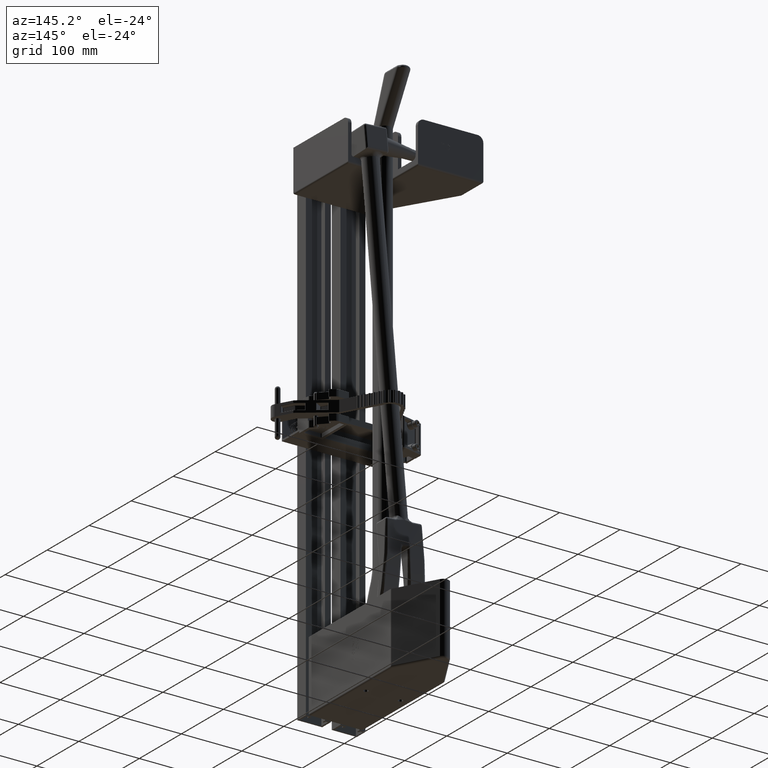
[diagram: clean part render]
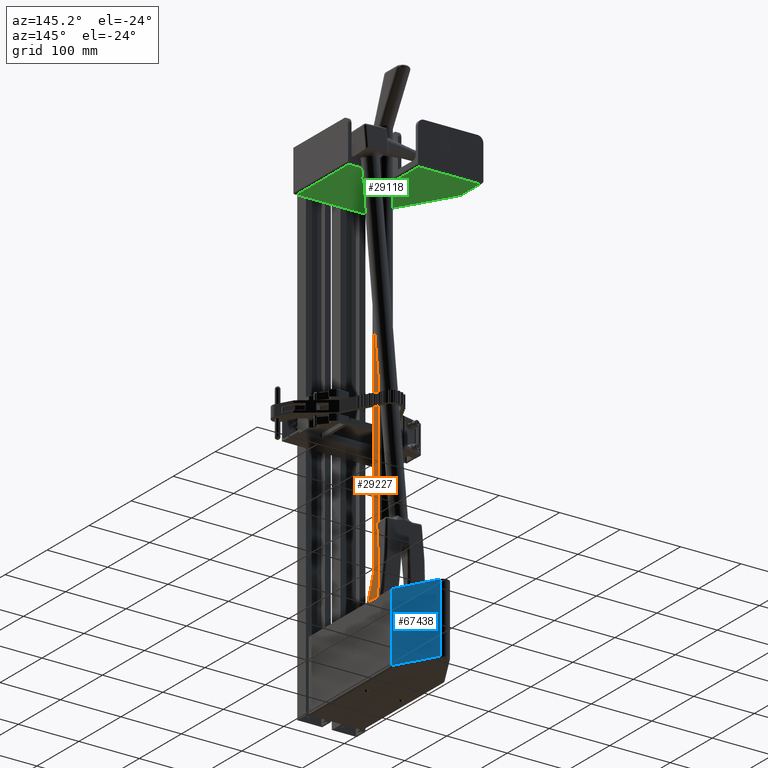
[diagram: same view with three faces highlighted in distinct colors, each labeled with its STEP entity id]
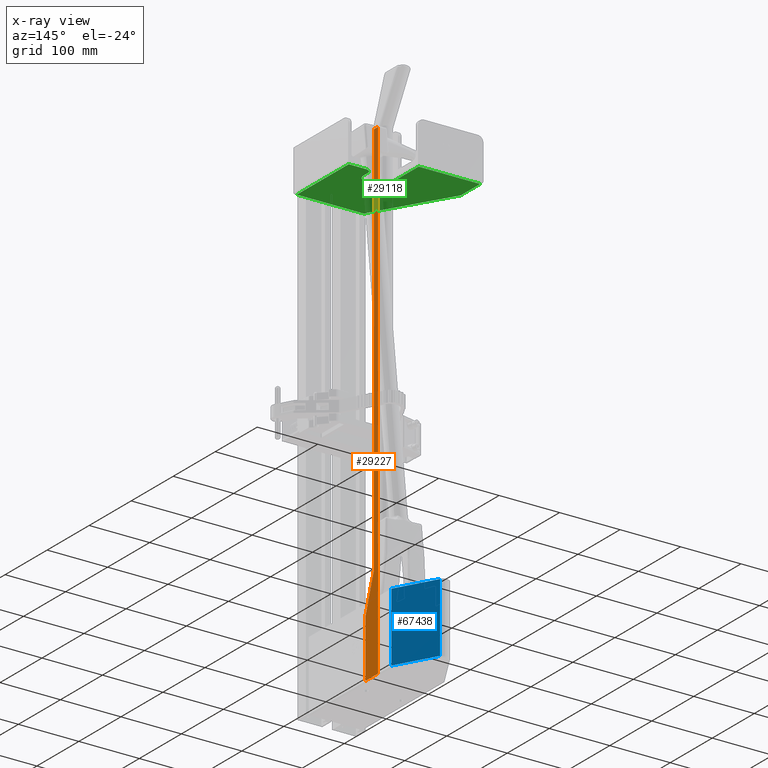
[diagram: x-ray of the same camera — body ghosted, the three highlighted faces saturated]
A machine part, auxiliary view with three faces highlighted in distinct colors.
The next image is the same camera in x-ray (body ghosted, the three faces saturated) — at least one of them is partly hidden behind the body in this view.
Their STEP definitions:

[orange] entity #29227 — the highlighted planar face has unit normal (1, 0, 0).
#21356 = B_SPLINE_CURVE_WITH_KNOTS ( 'NONE', 3,
 ( #52438, #52442, #52443, #52444, #52445, #52446, #52447 ),
 .UNSPECIFIED., .F., .F.,
 ( 4, 1, 1, 1, 4 ),
 ( 0.0000000000000000000, 0.2499999999427076900, 0.4999999998854153800, 0.7499999998281230400, 1.000000000000000000 ),
 .UNSPECIFIED. ) ;
#23010 = ORIENTED_EDGE ( 'NONE', *, *, #28834, .F. ) ;
#23011 = ORIENTED_EDGE ( 'NONE', *, *, #28833, .F. ) ;
#23012 = ORIENTED_EDGE ( 'NONE', *, *, #28828, .F. ) ;
#23013 = ORIENTED_EDGE ( 'NONE', *, *, #28835, .F. ) ;
#23014 = ORIENTED_EDGE ( 'NONE', *, *, #28831, .F. ) ;
#23015 = ORIENTED_EDGE ( 'NONE', *, *, #28832, .T. ) ;
#23016 = ORIENTED_EDGE ( 'NONE', *, *, #28836, .F. ) ;
#23017 = ORIENTED_EDGE ( 'NONE', *, *, #28812, .T. ) ;
#24386 = EDGE_LOOP ( 'NONE', ( #23010, #23011, #23012, #23013, #23014, #23015, #23016, #23017 ) ) ;
#25218 = VERTEX_POINT ( 'NONE', #42758 ) ;
#25221 = VERTEX_POINT ( 'NONE', #42764 ) ;
#25224 = VERTEX_POINT ( 'NONE', #42770 ) ;
#25225 = VERTEX_POINT ( 'NONE', #42772 ) ;
#25226 = VERTEX_POINT ( 'NONE', #42774 ) ;
#25227 = VERTEX_POINT ( 'NONE', #42776 ) ;
#25228 = VERTEX_POINT ( 'NONE', #42778 ) ;
#25229 = VERTEX_POINT ( 'NONE', #42780 ) ;
#28812 = EDGE_CURVE ( 'NONE', #25218, #25221, #50658, .T. ) ;
#28828 = EDGE_CURVE ( 'NONE', #25226, #25225, #50681, .T. ) ;
#28831 = EDGE_CURVE ( 'NONE', #25228, #25227, #21356, .T. ) ;
#28832 = EDGE_CURVE ( 'NONE', #25228, #25229, #50689, .T. ) ;
#28833 = EDGE_CURVE ( 'NONE', #25225, #25224, #50692, .T. ) ;
#28834 = EDGE_CURVE ( 'NONE', #25224, #25221, #50685, .T. ) ;
#28835 = EDGE_CURVE ( 'NONE', #25227, #25226, #50696, .T. ) ;
#28836 = EDGE_CURVE ( 'NONE', #25218, #25229, #50649, .T. ) ;
#29227 = ADVANCED_FACE ( 'NONE', ( #51251 ), #63501, .T. ) ;
#37614 = AXIS2_PLACEMENT_3D ( 'NONE', #63497, #63504, #63505 ) ;
#42758 = CARTESIAN_POINT ( 'NONE',  ( -2.887444690265486900, 2.054374613805310700, 3.750000000000000000 ) ) ;
#42764 = CARTESIAN_POINT ( 'NONE',  ( -2.887444690265486900, 2.054374613805310300, 0.0000000000000000000 ) ) ;
#42770 = CARTESIAN_POINT ( 'NONE',  ( -2.887444690265486900, 0.8668746138053105000, 0.0000000000000000000 ) ) ;
#42772 = CARTESIAN_POINT ( 'NONE',  ( -2.887444690265486900, 0.8668746138053105000, 3.750000000000000000 ) ) ;
#42774 = CARTESIAN_POINT ( 'NONE',  ( -2.887444690265486900, 0.8668746138053105000, 6.199999999999994000 ) ) ;
#42776 = CARTESIAN_POINT ( 'NONE',  ( -2.887444690265486900, 0.8668746138053105000, 31.99999999999999600 ) ) ;
#42778 = CARTESIAN_POINT ( 'NONE',  ( -2.887444690265486900, 1.241874613805310500, 31.99999999999999600 ) ) ;
#42780 = CARTESIAN_POINT ( 'NONE',  ( -2.887444690265486900, 1.241874613805310500, 6.199999999999994000 ) ) ;
#50649 = LINE ( 'NONE', #52452, #50698 ) ;
#50658 = LINE ( 'NONE', #52384, #50659 ) ;
#50659 = VECTOR ( 'NONE', #52385, 39.37007874015748100 ) ;
#50681 = LINE ( 'NONE', #52434, #50684 ) ;
#50684 = VECTOR ( 'NONE', #52435, 39.37007874015748100 ) ;
#50685 = LINE ( 'NONE', #52441, #50694 ) ;
#50688 = VECTOR ( 'NONE', #52449, 39.37007874015748100 ) ;
#50689 = LINE ( 'NONE', #52448, #50688 ) ;
#50692 = LINE ( 'NONE', #52450, #50693 ) ;
#50693 = VECTOR ( 'NONE', #52451, 39.37007874015748100 ) ;
#50694 = VECTOR ( 'NONE', #52453, 39.37007874015748100 ) ;
#50696 = LINE ( 'NONE', #52454, #50697 ) ;
#50697 = VECTOR ( 'NONE', #52455, 39.37007874015748100 ) ;
#50698 = VECTOR ( 'NONE', #52457, 39.37007874015748900 ) ;
#51251 = FACE_OUTER_BOUND ( 'NONE', #24386, .T. ) ;
#52384 = CARTESIAN_POINT ( 'NONE',  ( -2.887444690265486900, 2.054374613805310300, 3.750000000000000000 ) ) ;
#52385 = DIRECTION ( 'NONE',  ( 0.0000000000000000000, 0.0000000000000000000, -1.000000000000000000 ) ) ;
#52434 = CARTESIAN_POINT ( 'NONE',  ( -2.887444690265486900, 0.8668746138053105000, 4.974999999999997000 ) ) ;
#52435 = DIRECTION ( 'NONE',  ( -0.0000000000000000000, -0.0000000000000000000, -1.000000000000000000 ) ) ;
#52438 = CARTESIAN_POINT ( 'NONE',  ( -2.887444690265486900, 1.241874613805310500, 31.99999999999999600 ) ) ;
#52441 = CARTESIAN_POINT ( 'NONE',  ( -2.887444690265486900, 2.054374613805310300, 0.0000000000000000000 ) ) ;
#52442 = CARTESIAN_POINT ( 'NONE',  ( -2.887444690265486900, 1.195377397594960400, 31.99999999999999600 ) ) ;
#52443 = CARTESIAN_POINT ( 'NONE',  ( -2.887444690265488200, 1.136205090966162500, 31.99999999999992900 ) ) ;
#52444 = CARTESIAN_POINT ( 'NONE',  ( -2.887444690265484700, 1.054374613805310700, 32.00000000000006400 ) ) ;
#52445 = CARTESIAN_POINT ( 'NONE',  ( -2.887444690265487300, 0.9725441366444582700, 31.99999999999994700 ) ) ;
#52446 = CARTESIAN_POINT ( 'NONE',  ( -2.887444690265486900, 0.9133718300156606900, 31.99999999999999600 ) ) ;
#52447 = CARTESIAN_POINT ( 'NONE',  ( -2.887444690265486900, 0.8668746138053105000, 31.99999999999999600 ) ) ;
#52448 = CARTESIAN_POINT ( 'NONE',  ( -2.887444690265486900, 1.241874613805310500, 31.99999999999999600 ) ) ;
#52449 = DIRECTION ( 'NONE',  ( -0.0000000000000000000, -0.0000000000000000000, -1.000000000000000000 ) ) ;
#52450 = CARTESIAN_POINT ( 'NONE',  ( -2.887444690265486900, 0.8668746138053105000, 3.750000000000000000 ) ) ;
#52451 = DIRECTION ( 'NONE',  ( 0.0000000000000000000, 0.0000000000000000000, -1.000000000000000000 ) ) ;
#52452 = CARTESIAN_POINT ( 'NONE',  ( -2.887444690265486900, 1.648124613805310500, 4.974999999999997000 ) ) ;
#52453 = DIRECTION ( 'NONE',  ( -0.0000000000000000000, 1.000000000000000000, -0.0000000000000000000 ) ) ;
#52454 = CARTESIAN_POINT ( 'NONE',  ( -2.887444690265486900, 0.8668746138053105000, 31.99999999999999600 ) ) ;
#52455 = DIRECTION ( 'NONE',  ( -0.0000000000000000000, -0.0000000000000000000, -1.000000000000000000 ) ) ;
#52457 = DIRECTION ( 'NONE',  ( 0.0000000000000000000, -0.3147745894168386100, 0.9491664542415416700 ) ) ;
#63497 = CARTESIAN_POINT ( 'NONE',  ( -2.887444690265486900, 2.054374613805310300, 3.750000000000000000 ) ) ;
#63501 = PLANE ( 'NONE',  #37614 ) ;
#63504 = DIRECTION ( 'NONE',  ( -1.000000000000000000, 0.0000000000000000000, -0.0000000000000000000 ) ) ;
#63505 = DIRECTION ( 'NONE',  ( -0.0000000000000000000, 0.0000000000000000000, 1.000000000000000000 ) ) ;

[blue] entity #67438 — the highlighted planar face has unit normal (-0.8739, -0.4861, 0).
#1882 = CARTESIAN_POINT ( 'NONE',  ( 1.750000000000000400, 7.687500000000000000, 4.625000000000000000 ) ) ;
#1907 = DIRECTION ( 'NONE',  ( -0.4860531373431767900, 0.8739292578228828900, 0.0000000000000000000 ) ) ;
#1997 = CARTESIAN_POINT ( 'NONE',  ( 1.750000000000000400, 7.687500000000000000, 0.1249999999999999000 ) ) ;
#1999 = DIRECTION ( 'NONE',  ( -0.4860531373431767900, 0.8739292578228828900, 0.0000000000000000000 ) ) ;
#2001 = CARTESIAN_POINT ( 'NONE',  ( 1.734241157227860700, 7.715834584657314600, 4.625000000000000000 ) ) ;
#2010 = DIRECTION ( 'NONE',  ( 0.0000000000000000000, 0.0000000000000000000, -1.000000000000000000 ) ) ;
#2017 = CARTESIAN_POINT ( 'NONE',  ( 0.3277234716835822300, 10.24476992650369100, 4.625000000000000000 ) ) ;
#2038 = DIRECTION ( 'NONE',  ( -0.0000000000000000000, -0.0000000000000000000, -1.000000000000000000 ) ) ;
#10801 = AXIS2_PLACEMENT_3D ( 'NONE', #41956, #41974, #41976 ) ;
#18665 = FACE_OUTER_BOUND ( 'NONE', #32385, .T. ) ;
#19390 = CARTESIAN_POINT ( 'NONE',  ( 1.734241157227860700, 7.715834584657314600, 4.625000000000000000 ) ) ;
#19391 = CARTESIAN_POINT ( 'NONE',  ( 0.3277234716835822300, 10.24476992650369100, 4.625000000000000000 ) ) ;
#19409 = CARTESIAN_POINT ( 'NONE',  ( 1.734241157227860700, 7.715834584657314600, 0.1249999999999999000 ) ) ;
#19410 = CARTESIAN_POINT ( 'NONE',  ( 0.3277234716835822300, 10.24476992650369100, 0.1249999999999999000 ) ) ;
#22355 = ORIENTED_EDGE ( 'NONE', *, *, #71487, .F. ) ;
#22356 = ORIENTED_EDGE ( 'NONE', *, *, #71505, .T. ) ;
#22357 = ORIENTED_EDGE ( 'NONE', *, *, #71503, .T. ) ;
#22358 = ORIENTED_EDGE ( 'NONE', *, *, #71510, .F. ) ;
#32385 = EDGE_LOOP ( 'NONE', ( #22355, #22356, #22357, #22358 ) ) ;
#41949 = PLANE ( 'NONE',  #10801 ) ;
#41956 = CARTESIAN_POINT ( 'NONE',  ( 1.750000000000000400, 7.687500000000000000, 4.625000000000000000 ) ) ;
#41974 = DIRECTION ( 'NONE',  ( -0.8739292578228828900, -0.4860531373431767900, 0.0000000000000000000 ) ) ;
#41976 = DIRECTION ( 'NONE',  ( 0.4860531373431767900, -0.8739292578228828900, 0.0000000000000000000 ) ) ;
#59403 = VECTOR ( 'NONE', #1907, 39.37007874015748100 ) ;
#59423 = LINE ( 'NONE', #1882, #59403 ) ;
#59445 = LINE ( 'NONE', #1997, #59446 ) ;
#59446 = VECTOR ( 'NONE', #1999, 39.37007874015748900 ) ;
#59449 = LINE ( 'NONE', #2001, #59453 ) ;
#59453 = VECTOR ( 'NONE', #2010, 39.37007874015748100 ) ;
#59459 = LINE ( 'NONE', #2017, #59461 ) ;
#59461 = VECTOR ( 'NONE', #2038, 39.37007874015748100 ) ;
#65795 = VERTEX_POINT ( 'NONE', #19390 ) ;
#65797 = VERTEX_POINT ( 'NONE', #19391 ) ;
#65833 = VERTEX_POINT ( 'NONE', #19409 ) ;
#65835 = VERTEX_POINT ( 'NONE', #19410 ) ;
#67438 = ADVANCED_FACE ( 'NONE', ( #18665 ), #41949, .F. ) ;
#71487 = EDGE_CURVE ( 'NONE', #65795, #65797, #59423, .T. ) ;
#71503 = EDGE_CURVE ( 'NONE', #65833, #65835, #59445, .T. ) ;
#71505 = EDGE_CURVE ( 'NONE', #65795, #65833, #59449, .T. ) ;
#71510 = EDGE_CURVE ( 'NONE', #65797, #65835, #59459, .T. ) ;

[green] entity #29118 — the highlighted planar face has unit normal (0, 0, 1).
#10278 = AXIS2_PLACEMENT_3D ( 'NONE', #16723, #16744, #16745 ) ;
#10283 = AXIS2_PLACEMENT_3D ( 'NONE', #16720, #16724, #16725 ) ;
#10285 = AXIS2_PLACEMENT_3D ( 'NONE', #16716, #16729, #16730 ) ;
#14902 = LINE ( 'NONE', #16721, #14918 ) ;
#14909 = LINE ( 'NONE', #16708, #14910 ) ;
#14910 = VECTOR ( 'NONE', #16709, 39.37007874015748100 ) ;
#14913 = VECTOR ( 'NONE', #16727, 39.37007874015748100 ) ;
#14914 = LINE ( 'NONE', #16714, #14915 ) ;
#14915 = VECTOR ( 'NONE', #16715, 39.37007874015748100 ) ;
#14916 = LINE ( 'NONE', #16731, #14919 ) ;
#14917 = LINE ( 'NONE', #16726, #14913 ) ;
#14918 = VECTOR ( 'NONE', #16722, 39.37007874015748100 ) ;
#14919 = VECTOR ( 'NONE', #16732, 39.37007874015748100 ) ;
#14920 = CIRCLE ( 'NONE', #10283, 0.6250000000000000000 ) ;
#14922 = CIRCLE ( 'NONE', #10285, 0.3750000000000001100 ) ;
#14923 = LINE ( 'NONE', #16733, #14924 ) ;
#14924 = VECTOR ( 'NONE', #16734, 39.37007874015748100 ) ;
#14925 = LINE ( 'NONE', #16735, #14926 ) ;
#14926 = VECTOR ( 'NONE', #16736, 39.37007874015748100 ) ;
#14927 = LINE ( 'NONE', #16737, #14928 ) ;
#14928 = VECTOR ( 'NONE', #16738, 39.37007874015748100 ) ;
#14929 = LINE ( 'NONE', #16739, #14930 ) ;
#14930 = VECTOR ( 'NONE', #16740, 39.37007874015748100 ) ;
#14931 = LINE ( 'NONE', #16741, #14932 ) ;
#14932 = VECTOR ( 'NONE', #16742, 39.37007874015748100 ) ;
#14934 = CIRCLE ( 'NONE', #10278, 0.3749999999999999400 ) ;
#16708 = CARTESIAN_POINT ( 'NONE',  ( 0.7187500000000001100, 7.000000000000000000, 0.0000000000000000000 ) ) ;
#16709 = DIRECTION ( 'NONE',  ( -4.966996352116843800E-017, 1.000000000000000000, -0.0000000000000000000 ) ) ;
#16714 = CARTESIAN_POINT ( 'NONE',  ( 2.218750000000000000, 7.000000000000000000, 0.0000000000000000000 ) ) ;
#16715 = DIRECTION ( 'NONE',  ( 5.330435109588807600E-017, -1.000000000000000000, -0.0000000000000000000 ) ) ;
#16716 = CARTESIAN_POINT ( 'NONE',  ( 1.093750000000000000, 4.624999999999999100, 0.0000000000000000000 ) ) ;
#16720 = CARTESIAN_POINT ( 'NONE',  ( 0.09374999999999998600, 4.250000000000000000, 0.0000000000000000000 ) ) ;
#16721 = CARTESIAN_POINT ( 'NONE',  ( -2.343749999999992000, 4.999999999999999100, 0.0000000000000000000 ) ) ;
#16722 = DIRECTION ( 'NONE',  ( 1.000000000000000000, -0.0000000000000000000, -0.0000000000000000000 ) ) ;
#16723 = CARTESIAN_POINT ( 'NONE',  ( -0.6562499999999998900, 4.000000000000000000, 0.0000000000000000000 ) ) ;
#16724 = DIRECTION ( 'NONE',  ( 0.0000000000000000000, -0.0000000000000000000, 1.000000000000000000 ) ) ;
#16725 = DIRECTION ( 'NONE',  ( 1.000000000000000000, 0.0000000000000000000, 0.0000000000000000000 ) ) ;
#16726 = CARTESIAN_POINT ( 'NONE',  ( -2.343749999999992000, 3.625000000000000400, 0.0000000000000000000 ) ) ;
#16727 = DIRECTION ( 'NONE',  ( 1.000000000000000000, -0.0000000000000000000, -0.0000000000000000000 ) ) ;
#16729 = DIRECTION ( 'NONE',  ( -0.0000000000000000000, 0.0000000000000000000, -1.000000000000000000 ) ) ;
#16730 = DIRECTION ( 'NONE',  ( 1.000000000000000000, -1.456985596620940000E-015, 0.0000000000000000000 ) ) ;
#16731 = CARTESIAN_POINT ( 'NONE',  ( -2.343749999999992000, 0.1250000000000004400, 0.0000000000000000000 ) ) ;
#16732 = DIRECTION ( 'NONE',  ( -1.000000000000000000, -0.0000000000000000000, -0.0000000000000000000 ) ) ;
#16733 = CARTESIAN_POINT ( 'NONE',  ( -2.218749999999992500, 7.000000000000000000, 0.0000000000000000000 ) ) ;
#16734 = DIRECTION ( 'NONE',  ( 1.115039997413985000E-015, 1.000000000000000000, -0.0000000000000000000 ) ) ;
#16735 = CARTESIAN_POINT ( 'NONE',  ( -5.193033217995651500, 5.318235246461113300, 0.0000000000000000000 ) ) ;
#16736 = DIRECTION ( 'NONE',  ( -0.5083030259751671900, 0.8611782822299273200, -0.0000000000000000000 ) ) ;
#16737 = CARTESIAN_POINT ( 'NONE',  ( -5.031249999999999100, 7.000000000000000000, 0.0000000000000000000 ) ) ;
#16738 = DIRECTION ( 'NONE',  ( -0.0000000000000000000, 1.000000000000000000, -0.0000000000000000000 ) ) ;
#16739 = CARTESIAN_POINT ( 'NONE',  ( -2.343749999999992000, 6.874999999999999100, 0.0000000000000000000 ) ) ;
#16740 = DIRECTION ( 'NONE',  ( 1.000000000000000000, -0.0000000000000000000, -0.0000000000000000000 ) ) ;
#16741 = CARTESIAN_POINT ( 'NONE',  ( -1.031250000000000000, 7.000000000000000000, 0.0000000000000000000 ) ) ;
#16742 = DIRECTION ( 'NONE',  ( -0.0000000000000000000, -1.000000000000000000, -0.0000000000000000000 ) ) ;
#16744 = DIRECTION ( 'NONE',  ( 0.0000000000000000000, -0.0000000000000000000, 1.000000000000000000 ) ) ;
#16745 = DIRECTION ( 'NONE',  ( 1.000000000000000000, 0.0000000000000000000, 0.0000000000000000000 ) ) ;
#24397 = ORIENTED_EDGE ( 'NONE', *, *, #36079, .T. ) ;
#24400 = ORIENTED_EDGE ( 'NONE', *, *, #36093, .T. ) ;
#24403 = ORIENTED_EDGE ( 'NONE', *, *, #36064, .T. ) ;
#24404 = ORIENTED_EDGE ( 'NONE', *, *, #36091, .T. ) ;
#24406 = ORIENTED_EDGE ( 'NONE', *, *, #36069, .T. ) ;
#24407 = ORIENTED_EDGE ( 'NONE', *, *, #36088, .T. ) ;
#24409 = ORIENTED_EDGE ( 'NONE', *, *, #36076, .T. ) ;
#24410 = ORIENTED_EDGE ( 'NONE', *, *, #36057, .T. ) ;
#24411 = ORIENTED_EDGE ( 'NONE', *, *, #36072, .T. ) ;
#24413 = ORIENTED_EDGE ( 'NONE', *, *, #36074, .T. ) ;
#24415 = ORIENTED_EDGE ( 'NONE', *, *, #36086, .T. ) ;
#24418 = ORIENTED_EDGE ( 'NONE', *, *, #36084, .T. ) ;
#24420 = ORIENTED_EDGE ( 'NONE', *, *, #36081, .T. ) ;
#24712 = EDGE_LOOP ( 'NONE', ( #24413, #24411, #24410, #24409, #24406, #24403, #24397, #24420, #24418, #24415, #24407, #24404, #24400 ) ) ;
#27751 = VERTEX_POINT ( 'NONE', #49166 ) ;
#27752 = VERTEX_POINT ( 'NONE', #49167 ) ;
#27754 = VERTEX_POINT ( 'NONE', #49169 ) ;
#27756 = VERTEX_POINT ( 'NONE', #49171 ) ;
#27758 = VERTEX_POINT ( 'NONE', #49173 ) ;
#27760 = VERTEX_POINT ( 'NONE', #49175 ) ;
#27762 = VERTEX_POINT ( 'NONE', #49177 ) ;
#27763 = VERTEX_POINT ( 'NONE', #49178 ) ;
#27764 = VERTEX_POINT ( 'NONE', #49179 ) ;
#27765 = VERTEX_POINT ( 'NONE', #49180 ) ;
#27767 = VERTEX_POINT ( 'NONE', #49182 ) ;
#27768 = VERTEX_POINT ( 'NONE', #49183 ) ;
#27769 = VERTEX_POINT ( 'NONE', #49184 ) ;
#29118 = ADVANCED_FACE ( 'NONE', ( #51096 ), #60718, .F. ) ;
#36057 = EDGE_CURVE ( 'NONE', #27754, #27756, #14909, .T. ) ;
#36064 = EDGE_CURVE ( 'NONE', #27760, #27762, #14914, .T. ) ;
#36069 = EDGE_CURVE ( 'NONE', #27758, #27760, #14902, .T. ) ;
#36072 = EDGE_CURVE ( 'NONE', #27752, #27754, #14920, .T. ) ;
#36074 = EDGE_CURVE ( 'NONE', #27751, #27752, #14917, .T. ) ;
#36076 = EDGE_CURVE ( 'NONE', #27756, #27758, #14922, .T. ) ;
#36079 = EDGE_CURVE ( 'NONE', #27762, #27763, #14916, .T. ) ;
#36081 = EDGE_CURVE ( 'NONE', #27763, #27764, #14923, .T. ) ;
#36084 = EDGE_CURVE ( 'NONE', #27764, #27765, #14925, .T. ) ;
#36086 = EDGE_CURVE ( 'NONE', #27765, #27767, #14927, .T. ) ;
#36088 = EDGE_CURVE ( 'NONE', #27767, #27768, #14929, .T. ) ;
#36091 = EDGE_CURVE ( 'NONE', #27768, #27769, #14931, .T. ) ;
#36093 = EDGE_CURVE ( 'NONE', #27769, #27751, #14934, .T. ) ;
#37518 = AXIS2_PLACEMENT_3D ( 'NONE', #60712, #60724, #60725 ) ;
#49166 = CARTESIAN_POINT ( 'NONE',  ( -0.6562499999999998900, 3.625000000000000400, 0.0000000000000000000 ) ) ;
#49167 = CARTESIAN_POINT ( 'NONE',  ( 0.09374999999999998600, 3.625000000000000400, 0.0000000000000000000 ) ) ;
#49169 = CARTESIAN_POINT ( 'NONE',  ( 0.7187500000000000000, 4.250000000000000000, 0.0000000000000000000 ) ) ;
#49171 = CARTESIAN_POINT ( 'NONE',  ( 0.7187500000000000000, 4.624999999999999100, 0.0000000000000000000 ) ) ;
#49173 = CARTESIAN_POINT ( 'NONE',  ( 1.093749999999999800, 4.999999999999999100, 0.0000000000000000000 ) ) ;
#49175 = CARTESIAN_POINT ( 'NONE',  ( 2.218750000000000000, 4.999999999999999100, 0.0000000000000000000 ) ) ;
#49177 = CARTESIAN_POINT ( 'NONE',  ( 2.218750000000000000, 0.1250000000000000000, 0.0000000000000000000 ) ) ;
#49178 = CARTESIAN_POINT ( 'NONE',  ( -2.218750000000000000, 0.1250000000000000000, 0.0000000000000000000 ) ) ;
#49179 = CARTESIAN_POINT ( 'NONE',  ( -2.218750000000000000, 0.2791385233502580700, 0.0000000000000000000 ) ) ;
#49180 = CARTESIAN_POINT ( 'NONE',  ( -5.031249999999999100, 5.044138523350255800, 0.0000000000000000000 ) ) ;
#49182 = CARTESIAN_POINT ( 'NONE',  ( -5.031249999999999100, 6.874999999999999100, 0.0000000000000000000 ) ) ;
#49183 = CARTESIAN_POINT ( 'NONE',  ( -1.031250000000000000, 6.874999999999999100, 0.0000000000000000000 ) ) ;
#49184 = CARTESIAN_POINT ( 'NONE',  ( -1.031250000000000000, 4.000000000000000000, 0.0000000000000000000 ) ) ;
#51096 = FACE_OUTER_BOUND ( 'NONE', #24712, .T. ) ;
#60712 = CARTESIAN_POINT ( 'NONE',  ( -2.343749999999992000, 7.000000000000000000, 0.0000000000000000000 ) ) ;
#60718 = PLANE ( 'NONE',  #37518 ) ;
#60724 = DIRECTION ( 'NONE',  ( 0.0000000000000000000, -0.0000000000000000000, 1.000000000000000000 ) ) ;
#60725 = DIRECTION ( 'NONE',  ( 1.000000000000000000, 0.0000000000000000000, -0.0000000000000000000 ) ) ;